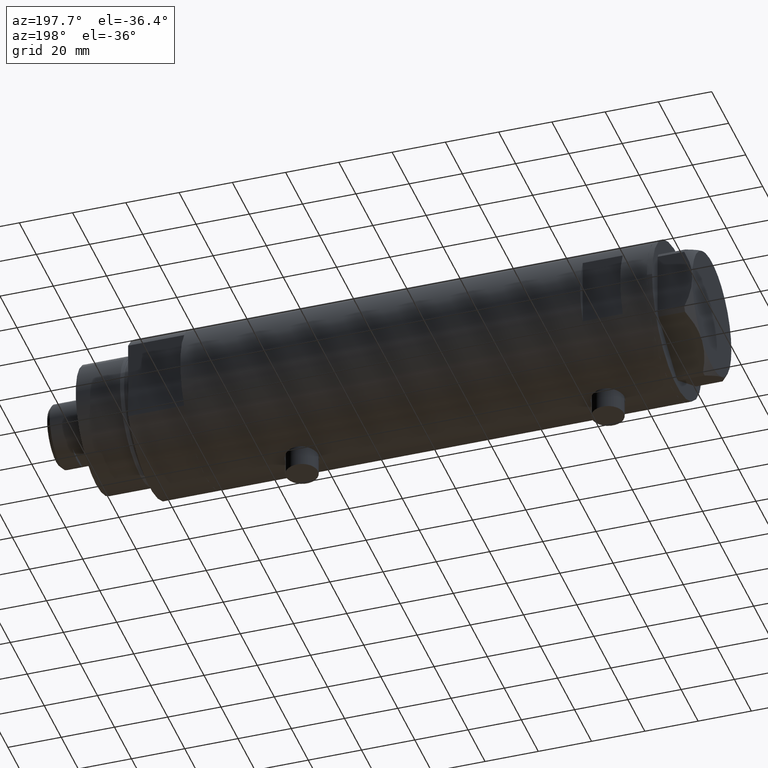
[diagram: clean part render]
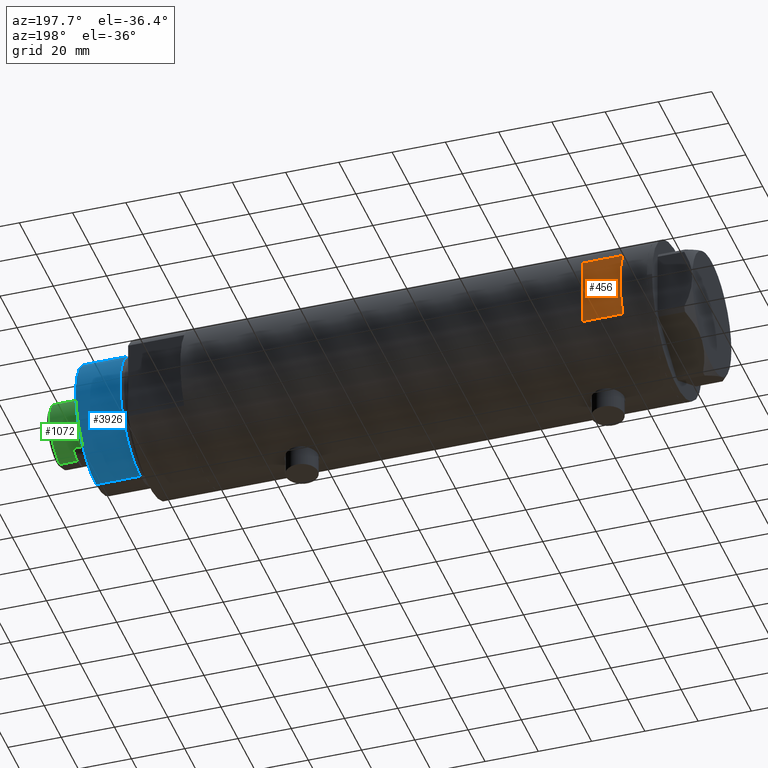
[diagram: same view with three faces highlighted in distinct colors, each labeled with its STEP entity id]
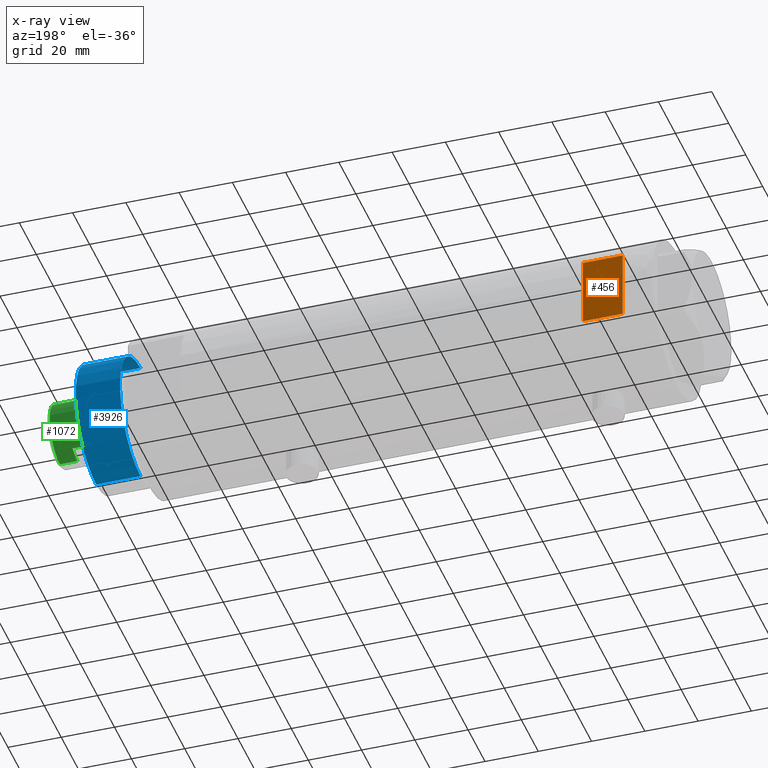
[diagram: x-ray of the same camera — body ghosted, the three highlighted faces saturated]
A machine part, auxiliary view with three faces highlighted in distinct colors.
The next image is the same camera in x-ray (body ghosted, the three faces saturated) — at least one of them is partly hidden behind the body in this view.
Their STEP definitions:

[orange] entity #456 — the highlighted planar face has unit normal (0, -1, -0).
#101 = FACE_OUTER_BOUND ( 'NONE', #1067, .T. ) ;
#121 = VECTOR ( 'NONE', #308, 1000.000000000000000 ) ;
#308 = DIRECTION ( 'NONE',  ( 1.000000000000000000, -0.000000000000000000, -0.000000000000000000 ) ) ;
#456 = ADVANCED_FACE ( 'NONE', ( #101 ), #4210, .F. ) ;
#526 = VERTEX_POINT ( 'NONE', #751 ) ;
#629 = CARTESIAN_POINT ( 'NONE',  ( -29.50000000000000355, 26.50000000000000355, 62.60000000000001563 ) ) ;
#751 = CARTESIAN_POINT ( 'NONE',  ( 12.96148139681571898, 26.50000000000000355, 62.60000000000001563 ) ) ;
#776 = CARTESIAN_POINT ( 'NONE',  ( -29.50000000000000355, 26.50000000000000355, 77.60000000000002274 ) ) ;
#948 = DIRECTION ( 'NONE',  ( -0.000000000000000000, -0.000000000000000000, -1.000000000000000000 ) ) ;
#1067 = EDGE_LOOP ( 'NONE', ( #3643, #1459, #2035, #4253 ) ) ;
#1139 = DIRECTION ( 'NONE',  ( 0.000000000000000000, 0.000000000000000000, -1.000000000000000000 ) ) ;
#1186 = EDGE_CURVE ( 'NONE', #2043, #526, #1684, .T. ) ;
#1253 = CARTESIAN_POINT ( 'NONE',  ( -12.96148139681573319, 26.49999999999999645, -87.59999999999999432 ) ) ;
#1401 = VERTEX_POINT ( 'NONE', #3840 ) ;
#1459 = ORIENTED_EDGE ( 'NONE', *, *, #1186, .F. ) ;
#1471 = EDGE_CURVE ( 'NONE', #2043, #1401, #1540, .T. ) ;
#1519 = DIRECTION ( 'NONE',  ( 0.000000000000000000, -1.000000000000000000, -0.000000000000000000 ) ) ;
#1540 = LINE ( 'NONE', #1253, #2358 ) ;
#1684 = LINE ( 'NONE', #629, #121 ) ;
#2035 = ORIENTED_EDGE ( 'NONE', *, *, #1471, .T. ) ;
#2043 = VERTEX_POINT ( 'NONE', #2272 ) ;
#2272 = CARTESIAN_POINT ( 'NONE',  ( -12.96148139681574030, 26.50000000000000355, 62.60000000000001563 ) ) ;
#2301 = VECTOR ( 'NONE', #2516, 1000.000000000000000 ) ;
#2358 = VECTOR ( 'NONE', #3991, 1000.000000000000000 ) ;
#2396 = EDGE_CURVE ( 'NONE', #2626, #526, #2652, .T. ) ;
#2516 = DIRECTION ( 'NONE',  ( 1.000000000000000000, -0.000000000000000000, -0.000000000000000000 ) ) ;
#2626 = VERTEX_POINT ( 'NONE', #4286 ) ;
#2652 = LINE ( 'NONE', #4028, #3160 ) ;
#2864 = CARTESIAN_POINT ( 'NONE',  ( -29.50000000000000355, 26.50000000000000355, 77.60000000000002274 ) ) ;
#3146 = LINE ( 'NONE', #776, #2301 ) ;
#3160 = VECTOR ( 'NONE', #948, 1000.000000000000000 ) ;
#3643 = ORIENTED_EDGE ( 'NONE', *, *, #2396, .T. ) ;
#3728 = EDGE_CURVE ( 'NONE', #1401, #2626, #3146, .T. ) ;
#3745 = AXIS2_PLACEMENT_3D ( 'NONE', #2864, #1519, #1139 ) ;
#3840 = CARTESIAN_POINT ( 'NONE',  ( -12.96148139681573319, 26.49999999999998934, 77.60000000000002274 ) ) ;
#3991 = DIRECTION ( 'NONE',  ( 0.000000000000000000, 0.000000000000000000, 1.000000000000000000 ) ) ;
#4028 = CARTESIAN_POINT ( 'NONE',  ( 12.96148139681573319, 26.49999999999999645, -87.59999999999999432 ) ) ;
#4210 = PLANE ( 'NONE',  #3745 ) ;
#4253 = ORIENTED_EDGE ( 'NONE', *, *, #3728, .T. ) ;
#4286 = CARTESIAN_POINT ( 'NONE',  ( 12.96148139681573319, 26.49999999999998934, 77.60000000000002274 ) ) ;

[blue] entity #3926 — the highlighted cylindrical surface (partial cylindrical patch) has radius 24 mm, axis along (-1, -0, 0).
#233 = CARTESIAN_POINT ( 'NONE',  ( 24.00000000000000355, 2.939152317953648289E-15, 41.00000000000000000 ) ) ;
#244 = ORIENTED_EDGE ( 'NONE', *, *, #4456, .F. ) ;
#379 = DIRECTION ( 'NONE',  ( -1.000000000000000000, 0.000000000000000000, 0.000000000000000000 ) ) ;
#399 = CARTESIAN_POINT ( 'NONE',  ( 0.000000000000000000, 0.000000000000000000, 41.00000000000000000 ) ) ;
#595 = EDGE_CURVE ( 'NONE', #2020, #1000, #3320, .T. ) ;
#654 = CARTESIAN_POINT ( 'NONE',  ( -24.00000000000000355, 0.000000000000000000, 41.00000000000000000 ) ) ;
#726 = AXIS2_PLACEMENT_3D ( 'NONE', #399, #3090, #379 ) ;
#897 = CARTESIAN_POINT ( 'NONE',  ( 0.000000000000000000, 0.000000000000000000, 24.37384048104054557 ) ) ;
#907 = CARTESIAN_POINT ( 'NONE',  ( 24.00000000000000355, 2.939152317953648289E-15, 41.00000000000000000 ) ) ;
#1000 = VERTEX_POINT ( 'NONE', #2613 ) ;
#1012 = VECTOR ( 'NONE', #3954, 1000.000000000000000 ) ;
#1543 = EDGE_CURVE ( 'NONE', #1000, #2717, #3238, .T. ) ;
#1572 = CARTESIAN_POINT ( 'NONE',  ( -24.00000000000000355, 0.000000000000000000, 24.37384048104054557 ) ) ;
#1748 = CIRCLE ( 'NONE', #3828, 24.00000000000000355 ) ;
#1767 = EDGE_CURVE ( 'NONE', #2280, #2717, #2215, .T. ) ;
#1771 = CYLINDRICAL_SURFACE ( 'NONE', #726, 24.00000000000000355 ) ;
#1794 = AXIS2_PLACEMENT_3D ( 'NONE', #897, #3034, #2625 ) ;
#1850 = DIRECTION ( 'NONE',  ( 0.000000000000000000, 0.000000000000000000, 1.000000000000000000 ) ) ;
#2020 = VERTEX_POINT ( 'NONE', #233 ) ;
#2139 = DIRECTION ( 'NONE',  ( 1.000000000000000000, 0.000000000000000000, 0.000000000000000000 ) ) ;
#2215 = LINE ( 'NONE', #2849, #1012 ) ;
#2280 = VERTEX_POINT ( 'NONE', #654 ) ;
#2364 = VECTOR ( 'NONE', #3971, 1000.000000000000000 ) ;
#2552 = ORIENTED_EDGE ( 'NONE', *, *, #1543, .T. ) ;
#2613 = CARTESIAN_POINT ( 'NONE',  ( 24.00000000000000355, 2.939152317953648289E-15, 24.37384048104054557 ) ) ;
#2625 = DIRECTION ( 'NONE',  ( 1.000000000000000000, 0.000000000000000000, 0.000000000000000000 ) ) ;
#2717 = VERTEX_POINT ( 'NONE', #1572 ) ;
#2736 = ORIENTED_EDGE ( 'NONE', *, *, #1767, .F. ) ;
#2823 = FACE_OUTER_BOUND ( 'NONE', #3248, .T. ) ;
#2839 = ORIENTED_EDGE ( 'NONE', *, *, #595, .T. ) ;
#2849 = CARTESIAN_POINT ( 'NONE',  ( -24.00000000000000355, 0.000000000000000000, 41.00000000000000000 ) ) ;
#3034 = DIRECTION ( 'NONE',  ( -0.000000000000000000, -0.000000000000000000, 1.000000000000000000 ) ) ;
#3090 = DIRECTION ( 'NONE',  ( -0.000000000000000000, -0.000000000000000000, -1.000000000000000000 ) ) ;
#3238 = CIRCLE ( 'NONE', #1794, 24.00000000000000355 ) ;
#3248 = EDGE_LOOP ( 'NONE', ( #244, #2839, #2552, #2736 ) ) ;
#3320 = LINE ( 'NONE', #907, #2364 ) ;
#3518 = CARTESIAN_POINT ( 'NONE',  ( 0.000000000000000000, 0.000000000000000000, 41.00000000000000000 ) ) ;
#3828 = AXIS2_PLACEMENT_3D ( 'NONE', #3518, #1850, #2139 ) ;
#3926 = ADVANCED_FACE ( 'NONE', ( #2823 ), #1771, .T. ) ;
#3954 = DIRECTION ( 'NONE',  ( -0.000000000000000000, -0.000000000000000000, -1.000000000000000000 ) ) ;
#3971 = DIRECTION ( 'NONE',  ( -0.000000000000000000, -0.000000000000000000, -1.000000000000000000 ) ) ;
#4456 = EDGE_CURVE ( 'NONE', #2020, #2280, #1748, .T. ) ;

[green] entity #1072 — the highlighted cylindrical surface (edge-blend (fillet) strip) has radius 12 mm, axis along (-1, -0, 0).
#207 = EDGE_CURVE ( 'NONE', #1615, #3100, #922, .T. ) ;
#251 = VERTEX_POINT ( 'NONE', #2685 ) ;
#279 = ORIENTED_EDGE ( 'NONE', *, *, #207, .T. ) ;
#296 = DIRECTION ( 'NONE',  ( -0.000000000000000000, -0.000000000000000000, -1.000000000000000000 ) ) ;
#444 = CARTESIAN_POINT ( 'NONE',  ( 0.000000000000000000, 0.000000000000000000, 206.2999999999999829 ) ) ;
#566 = CARTESIAN_POINT ( 'NONE',  ( 10.48861764008966269, 5.830000000000000071, 199.7000000000000171 ) ) ;
#644 = CARTESIAN_POINT ( 'NONE',  ( 10.48861764008966269, 5.830000000000000071, 199.7000000000000171 ) ) ;
#904 = EDGE_CURVE ( 'NONE', #1157, #3038, #2226, .T. ) ;
#922 = CIRCLE ( 'NONE', #3451, 11.99999999999998224 ) ;
#1011 = VECTOR ( 'NONE', #1855, 1000.000000000000000 ) ;
#1064 = DIRECTION ( 'NONE',  ( 0.000000000000000000, 0.000000000000000000, 1.000000000000000000 ) ) ;
#1070 = CIRCLE ( 'NONE', #2147, 12.00000000000000178 ) ;
#1072 = ADVANCED_FACE ( 'NONE', ( #4272 ), #2999, .T. ) ;
#1108 = VERTEX_POINT ( 'NONE', #566 ) ;
#1157 = VERTEX_POINT ( 'NONE', #3782 ) ;
#1373 = AXIS2_PLACEMENT_3D ( 'NONE', #444, #1827, #3201 ) ;
#1376 = CARTESIAN_POINT ( 'NONE',  ( 10.48861764008966269, 5.830000000000000071, 192.7000000000000171 ) ) ;
#1382 = AXIS2_PLACEMENT_3D ( 'NONE', #2448, #3495, #4073 ) ;
#1582 = CARTESIAN_POINT ( 'NONE',  ( -10.48861764008966269, 5.829999999999960991, 192.7000000000000171 ) ) ;
#1590 = VECTOR ( 'NONE', #1682, 1000.000000000000000 ) ;
#1601 = ORIENTED_EDGE ( 'NONE', *, *, #2001, .T. ) ;
#1615 = VERTEX_POINT ( 'NONE', #1376 ) ;
#1618 = LINE ( 'NONE', #2983, #2649 ) ;
#1682 = DIRECTION ( 'NONE',  ( -0.000000000000000000, -0.000000000000000000, -1.000000000000000000 ) ) ;
#1774 = DIRECTION ( 'NONE',  ( 0.000000000000000000, 0.000000000000000000, 1.000000000000000000 ) ) ;
#1817 = LINE ( 'NONE', #3892, #1011 ) ;
#1819 = CARTESIAN_POINT ( 'NONE',  ( 12.00000000000000355, 1.469576158976824342E-15, 199.7000000000000171 ) ) ;
#1827 = DIRECTION ( 'NONE',  ( 0.000000000000000000, 0.000000000000000000, -1.000000000000000000 ) ) ;
#1855 = DIRECTION ( 'NONE',  ( -0.000000000000000000, -0.000000000000000000, -1.000000000000000000 ) ) ;
#1875 = CIRCLE ( 'NONE', #1382, 12.00000000000000178 ) ;
#1977 = EDGE_CURVE ( 'NONE', #251, #3100, #1618, .T. ) ;
#2001 = EDGE_CURVE ( 'NONE', #2842, #1108, #1070, .T. ) ;
#2146 = CARTESIAN_POINT ( 'NONE',  ( 12.00000000000000000, 1.469576158976823947E-15, 206.2999999999999829 ) ) ;
#2147 = AXIS2_PLACEMENT_3D ( 'NONE', #3119, #1064, #3735 ) ;
#2150 = VERTEX_POINT ( 'NONE', #3428 ) ;
#2226 = CIRCLE ( 'NONE', #1373, 12.00000000000000000 ) ;
#2399 = DIRECTION ( 'NONE',  ( 1.000000000000000000, 0.000000000000000000, 0.000000000000000000 ) ) ;
#2448 = CARTESIAN_POINT ( 'NONE',  ( 0.000000000000000000, 0.000000000000000000, 199.7000000000000171 ) ) ;
#2493 = ORIENTED_EDGE ( 'NONE', *, *, #904, .T. ) ;
#2649 = VECTOR ( 'NONE', #4350, 1000.000000000000000 ) ;
#2683 = CARTESIAN_POINT ( 'NONE',  ( 12.00000000000000000, 1.469576158976823947E-15, 199.7000000000000171 ) ) ;
#2685 = CARTESIAN_POINT ( 'NONE',  ( -10.48861764008966269, 5.829999999999999183, 199.7000000000000171 ) ) ;
#2842 = VERTEX_POINT ( 'NONE', #1819 ) ;
#2915 = DIRECTION ( 'NONE',  ( -1.000000000000000000, 0.000000000000000000, 0.000000000000000000 ) ) ;
#2929 = EDGE_CURVE ( 'NONE', #1157, #2150, #1817, .T. ) ;
#2983 = CARTESIAN_POINT ( 'NONE',  ( -10.48861764008966269, 5.829999999999999183, 199.7000000000000171 ) ) ;
#2999 = CYLINDRICAL_SURFACE ( 'NONE', #4025, 12.00000000000000000 ) ;
#3038 = VERTEX_POINT ( 'NONE', #2146 ) ;
#3082 = ORIENTED_EDGE ( 'NONE', *, *, #3527, .T. ) ;
#3100 = VERTEX_POINT ( 'NONE', #1582 ) ;
#3119 = CARTESIAN_POINT ( 'NONE',  ( 0.000000000000000000, 0.000000000000000000, 199.7000000000000171 ) ) ;
#3201 = DIRECTION ( 'NONE',  ( 1.000000000000000000, 0.000000000000000000, 0.000000000000000000 ) ) ;
#3263 = LINE ( 'NONE', #2683, #1590 ) ;
#3294 = ORIENTED_EDGE ( 'NONE', *, *, #1977, .F. ) ;
#3347 = DIRECTION ( 'NONE',  ( -0.000000000000000000, -0.000000000000000000, -1.000000000000000000 ) ) ;
#3398 = ORIENTED_EDGE ( 'NONE', *, *, #3572, .T. ) ;
#3428 = CARTESIAN_POINT ( 'NONE',  ( -12.00000000000000355, 0.000000000000000000, 199.7000000000000171 ) ) ;
#3451 = AXIS2_PLACEMENT_3D ( 'NONE', #3467, #1774, #2399 ) ;
#3467 = CARTESIAN_POINT ( 'NONE',  ( 0.000000000000000000, 0.000000000000000000, 192.7000000000000171 ) ) ;
#3495 = DIRECTION ( 'NONE',  ( 0.000000000000000000, 0.000000000000000000, 1.000000000000000000 ) ) ;
#3527 = EDGE_CURVE ( 'NONE', #251, #2150, #1875, .T. ) ;
#3572 = EDGE_CURVE ( 'NONE', #1108, #1615, #4138, .T. ) ;
#3735 = DIRECTION ( 'NONE',  ( 1.000000000000000000, 0.000000000000000000, 0.000000000000000000 ) ) ;
#3782 = CARTESIAN_POINT ( 'NONE',  ( -12.00000000000000000, 0.000000000000000000, 206.2999999999999829 ) ) ;
#3797 = EDGE_CURVE ( 'NONE', #3038, #2842, #3263, .T. ) ;
#3820 = VECTOR ( 'NONE', #296, 1000.000000000000000 ) ;
#3892 = CARTESIAN_POINT ( 'NONE',  ( -12.00000000000000000, 0.000000000000000000, 199.7000000000000171 ) ) ;
#4025 = AXIS2_PLACEMENT_3D ( 'NONE', #4348, #3347, #2915 ) ;
#4044 = ORIENTED_EDGE ( 'NONE', *, *, #3797, .T. ) ;
#4073 = DIRECTION ( 'NONE',  ( 1.000000000000000000, 0.000000000000000000, 0.000000000000000000 ) ) ;
#4138 = LINE ( 'NONE', #644, #3820 ) ;
#4148 = EDGE_LOOP ( 'NONE', ( #2493, #4044, #1601, #3398, #279, #3294, #3082, #4422 ) ) ;
#4272 = FACE_OUTER_BOUND ( 'NONE', #4148, .T. ) ;
#4348 = CARTESIAN_POINT ( 'NONE',  ( 0.000000000000000000, 0.000000000000000000, 199.7000000000000171 ) ) ;
#4350 = DIRECTION ( 'NONE',  ( -0.000000000000000000, -0.000000000000000000, -1.000000000000000000 ) ) ;
#4422 = ORIENTED_EDGE ( 'NONE', *, *, #2929, .F. ) ;